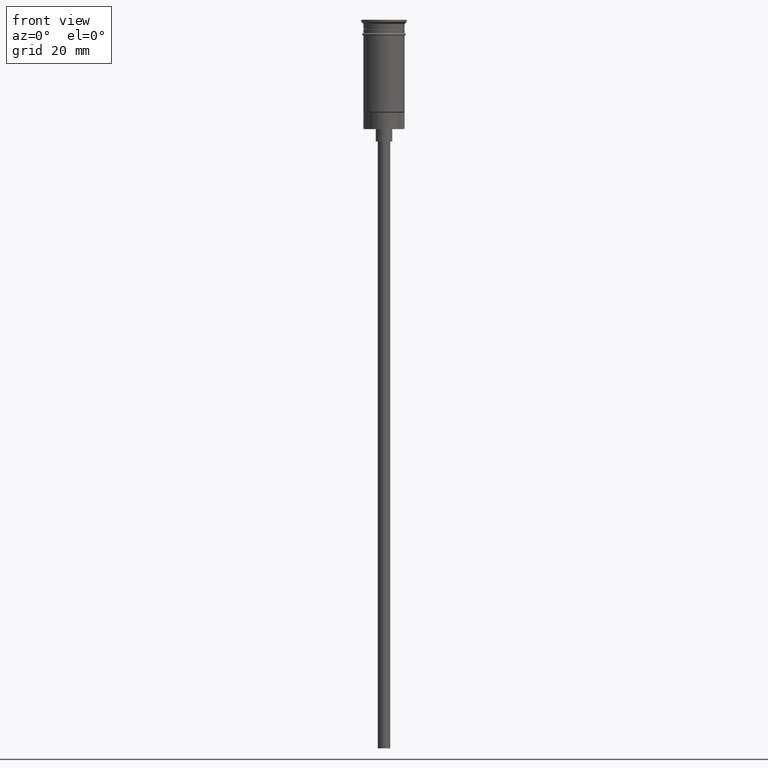
[diagram: clean part render]
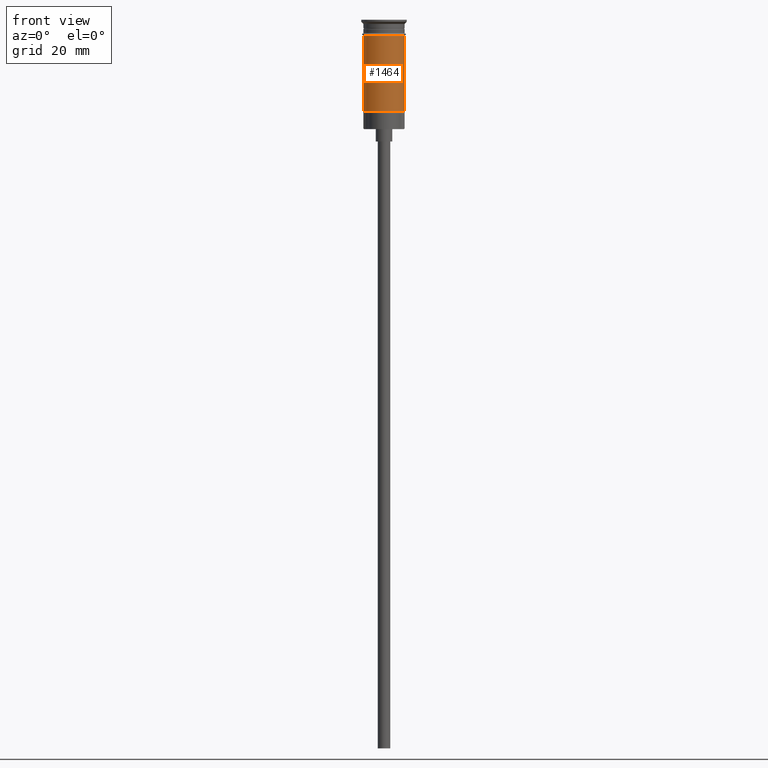
[diagram: same view with one face highlighted and labeled with its STEP entity id]
A machine part, front view. The second image highlights one B-rep face of the part: STEP entity #1464.
In plain terms, the highlighted cylindrical surface (edge-blend (fillet) strip) has radius 5 mm, axis along (-0, -0, 1).
Its self-contained STEP definition (entity closure, byte-faithful):
#99 = DIRECTION ( 'NONE',  ( 1.000000000000000000, 0.000000000000000000, 0.000000000000000000 ) ) ;
#224 = ORIENTED_EDGE ( 'NONE', *, *, #249, .T. ) ;
#249 = EDGE_CURVE ( 'NONE', #1433, #450, #826, .T. ) ;
#291 = VERTEX_POINT ( 'NONE', #1580 ) ;
#303 = CARTESIAN_POINT ( 'NONE',  ( 4.999999999999999112, 0.000000000000000000, -3.799999999999998934 ) ) ;
#351 = VECTOR ( 'NONE', #471, 1000.000000000000000 ) ;
#450 = VERTEX_POINT ( 'NONE', #303 ) ;
#466 = AXIS2_PLACEMENT_3D ( 'NONE', #1143, #746, #882 ) ;
#471 = DIRECTION ( 'NONE',  ( -0.000000000000000000, -0.000000000000000000, 1.000000000000000000 ) ) ;
#486 = CARTESIAN_POINT ( 'NONE',  ( 4.999999999999996447, 0.000000000000000000, 0.000000000000000000 ) ) ;
#497 = CARTESIAN_POINT ( 'NONE',  ( 0.000000000000000000, 0.000000000000000000, -3.799999999999998934 ) ) ;
#567 = AXIS2_PLACEMENT_3D ( 'NONE', #1377, #894, #1510 ) ;
#579 = ORIENTED_EDGE ( 'NONE', *, *, #834, .F. ) ;
#614 = AXIS2_PLACEMENT_3D ( 'NONE', #497, #720, #99 ) ;
#720 = DIRECTION ( 'NONE',  ( -0.000000000000000000, -0.000000000000000000, 1.000000000000000000 ) ) ;
#746 = DIRECTION ( 'NONE',  ( -0.000000000000000000, -0.000000000000000000, 1.000000000000000000 ) ) ;
#781 = CARTESIAN_POINT ( 'NONE',  ( -4.999999999999996447, 6.123233995736762338E-16, 0.000000000000000000 ) ) ;
#785 = EDGE_CURVE ( 'NONE', #1492, #1433, #1138, .T. ) ;
#786 = FACE_OUTER_BOUND ( 'NONE', #1388, .T. ) ;
#826 = LINE ( 'NONE', #486, #351 ) ;
#834 = EDGE_CURVE ( 'NONE', #1492, #291, #891, .T. ) ;
#882 = DIRECTION ( 'NONE',  ( -1.000000000000000000, 0.000000000000000000, 0.000000000000000000 ) ) ;
#891 = LINE ( 'NONE', #781, #1026 ) ;
#894 = DIRECTION ( 'NONE',  ( -0.000000000000000000, -0.000000000000000000, 1.000000000000000000 ) ) ;
#1017 = CYLINDRICAL_SURFACE ( 'NONE', #567, 4.999999999999996447 ) ;
#1026 = VECTOR ( 'NONE', #1371, 1000.000000000000000 ) ;
#1069 = EDGE_CURVE ( 'NONE', #291, #450, #1556, .T. ) ;
#1138 = CIRCLE ( 'NONE', #466, 4.999999999999996447 ) ;
#1143 = CARTESIAN_POINT ( 'NONE',  ( 0.000000000000000000, 0.000000000000000000, -22.30000000000001137 ) ) ;
#1371 = DIRECTION ( 'NONE',  ( -0.000000000000000000, -0.000000000000000000, 1.000000000000000000 ) ) ;
#1377 = CARTESIAN_POINT ( 'NONE',  ( 0.000000000000000000, 0.000000000000000000, 0.000000000000000000 ) ) ;
#1388 = EDGE_LOOP ( 'NONE', ( #579, #1472, #224, #1392 ) ) ;
#1392 = ORIENTED_EDGE ( 'NONE', *, *, #1069, .F. ) ;
#1433 = VERTEX_POINT ( 'NONE', #1494 ) ;
#1450 = CARTESIAN_POINT ( 'NONE',  ( -4.999999999999993783, 0.000000000000000000, -22.30000000000001137 ) ) ;
#1464 = ADVANCED_FACE ( 'NONE', ( #786 ), #1017, .T. ) ;
#1472 = ORIENTED_EDGE ( 'NONE', *, *, #785, .T. ) ;
#1492 = VERTEX_POINT ( 'NONE', #1450 ) ;
#1494 = CARTESIAN_POINT ( 'NONE',  ( 4.999999999999996447, 6.123233995736761352E-16, -22.30000000000001137 ) ) ;
#1510 = DIRECTION ( 'NONE',  ( 1.000000000000000000, 0.000000000000000000, 0.000000000000000000 ) ) ;
#1556 = CIRCLE ( 'NONE', #614, 4.999999999999999112 ) ;
#1580 = CARTESIAN_POINT ( 'NONE',  ( -4.999999999999999112, 6.123233995736765296E-16, -3.799999999999998934 ) ) ;